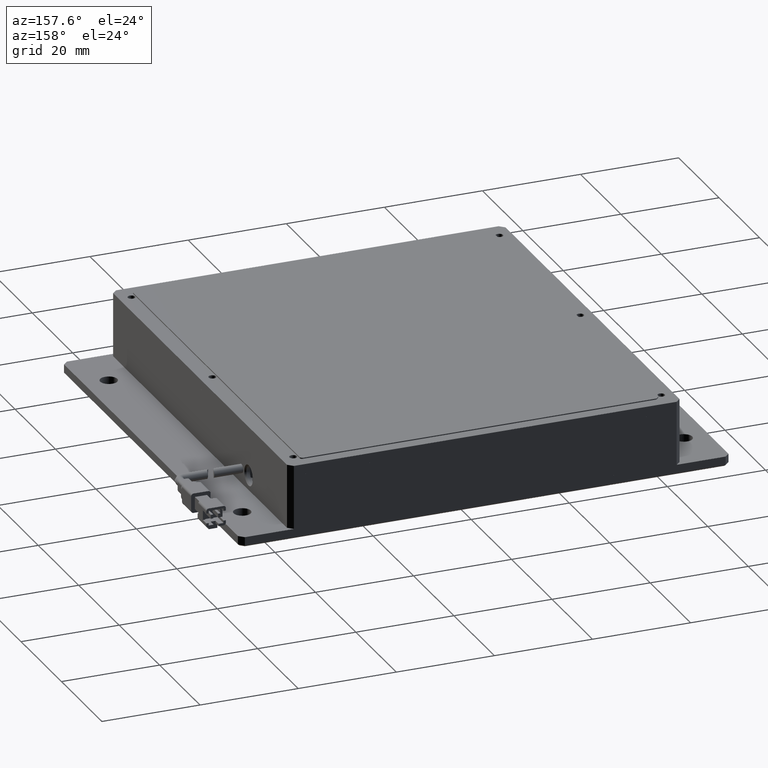
[diagram: clean part render]
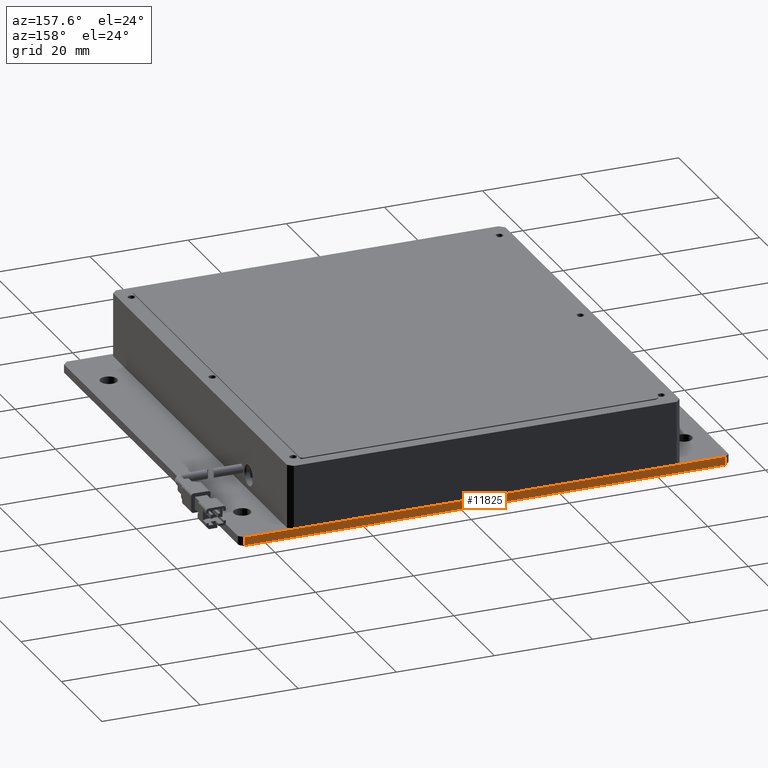
[diagram: same view with one face highlighted and labeled with its STEP entity id]
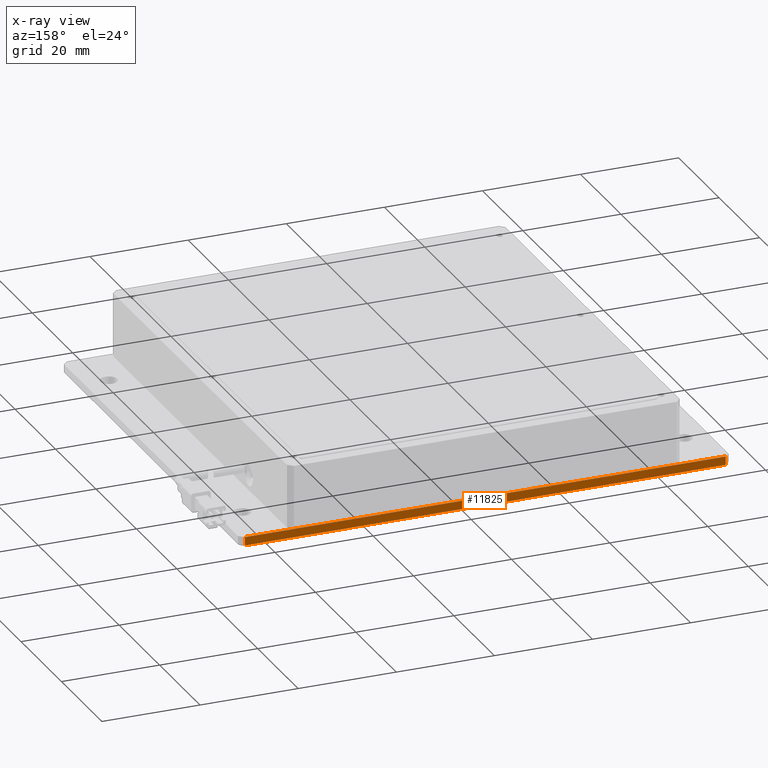
[diagram: x-ray of the same camera — body ghosted, the highlighted face saturated]
A machine part, auxiliary view. The second image highlights one B-rep face of the part: STEP entity #11825.
The next image is the same camera in x-ray: the body ghosted, the highlighted face saturated — about 0% of this face is hidden behind the body in this view.
In plain terms, the highlighted planar face has unit normal (0, -1, 0).
Its self-contained STEP definition (entity closure, byte-faithful):
#61 = DIRECTION ( 'NONE',  ( 0.0000000000000000000, -1.000000000000000000, 0.0000000000000000000 ) ) ;
#1034 = EDGE_CURVE ( 'NONE', #10737, #8888, #13725, .T. ) ;
#1356 = CARTESIAN_POINT ( 'NONE',  ( -32.94768995799925900, 39.79992363497521500, -1.700000000004553000 ) ) ;
#1466 = DIRECTION ( 'NONE',  ( 1.000000000000000000, 0.0000000000000000000, 0.0000000000000000000 ) ) ;
#2264 = VECTOR ( 'NONE', #8814, 1000.000000000000000 ) ;
#3345 = VERTEX_POINT ( 'NONE', #11561 ) ;
#3877 = EDGE_CURVE ( 'NONE', #3345, #8888, #14551, .T. ) ;
#5191 = LINE ( 'NONE', #16906, #2264 ) ;
#5450 = ORIENTED_EDGE ( 'NONE', *, *, #12933, .F. ) ;
#5712 = CARTESIAN_POINT ( 'NONE',  ( -32.94768995799925900, 39.79992363497521500, -4.547577592273199800E-012 ) ) ;
#6789 = CARTESIAN_POINT ( 'NONE',  ( 66.05231004200074100, 39.79992363497522900, -4.547577592273199800E-012 ) ) ;
#6862 = DIRECTION ( 'NONE',  ( -0.0000000000000000000, -0.0000000000000000000, -1.000000000000000000 ) ) ;
#6983 = AXIS2_PLACEMENT_3D ( 'NONE', #8454, #61, #9829 ) ;
#7114 = ORIENTED_EDGE ( 'NONE', *, *, #9248, .T. ) ;
#7435 = ORIENTED_EDGE ( 'NONE', *, *, #3877, .F. ) ;
#8198 = VERTEX_POINT ( 'NONE', #8574 ) ;
#8454 = CARTESIAN_POINT ( 'NONE',  ( -32.94768995799925900, 39.79992363497521500, -4.547577592273199800E-012 ) ) ;
#8574 = CARTESIAN_POINT ( 'NONE',  ( -31.94768995799925900, 39.79992363497521500, -4.547577592273199800E-012 ) ) ;
#8814 = DIRECTION ( 'NONE',  ( 0.0000000000000000000, -0.0000000000000000000, -1.000000000000000000 ) ) ;
#8888 = VERTEX_POINT ( 'NONE', #12787 ) ;
#8998 = EDGE_LOOP ( 'NONE', ( #7435, #5450, #7114, #12614 ) ) ;
#9248 = EDGE_CURVE ( 'NONE', #8198, #10737, #12597, .T. ) ;
#9452 = VECTOR ( 'NONE', #11150, 1000.000000000000000 ) ;
#9829 = DIRECTION ( 'NONE',  ( 0.0000000000000000000, -0.0000000000000000000, -1.000000000000000000 ) ) ;
#10561 = VECTOR ( 'NONE', #1466, 1000.000000000000000 ) ;
#10737 = VERTEX_POINT ( 'NONE', #17755 ) ;
#11150 = DIRECTION ( 'NONE',  ( 1.000000000000000000, -0.0000000000000000000, 0.0000000000000000000 ) ) ;
#11151 = PLANE ( 'NONE',  #6983 ) ;
#11561 = CARTESIAN_POINT ( 'NONE',  ( -31.94768995799925900, 39.79992363497521500, -1.700000000004553400 ) ) ;
#11825 = ADVANCED_FACE ( 'NONE', ( #14793 ), #11151, .F. ) ;
#12597 = LINE ( 'NONE', #5712, #9452 ) ;
#12614 = ORIENTED_EDGE ( 'NONE', *, *, #1034, .T. ) ;
#12787 = CARTESIAN_POINT ( 'NONE',  ( 66.05231004200074100, 39.79992363497521500, -1.700000000004552100 ) ) ;
#12933 = EDGE_CURVE ( 'NONE', #8198, #3345, #5191, .T. ) ;
#13725 = LINE ( 'NONE', #6789, #14136 ) ;
#14136 = VECTOR ( 'NONE', #6862, 1000.000000000000000 ) ;
#14551 = LINE ( 'NONE', #1356, #10561 ) ;
#14793 = FACE_OUTER_BOUND ( 'NONE', #8998, .T. ) ;
#16906 = CARTESIAN_POINT ( 'NONE',  ( -31.94768995799925900, 39.79992363497521500, -4.547577592273199800E-012 ) ) ;
#17755 = CARTESIAN_POINT ( 'NONE',  ( 66.05231004200076900, 39.79992363497521500, -4.547577592273199800E-012 ) ) ;